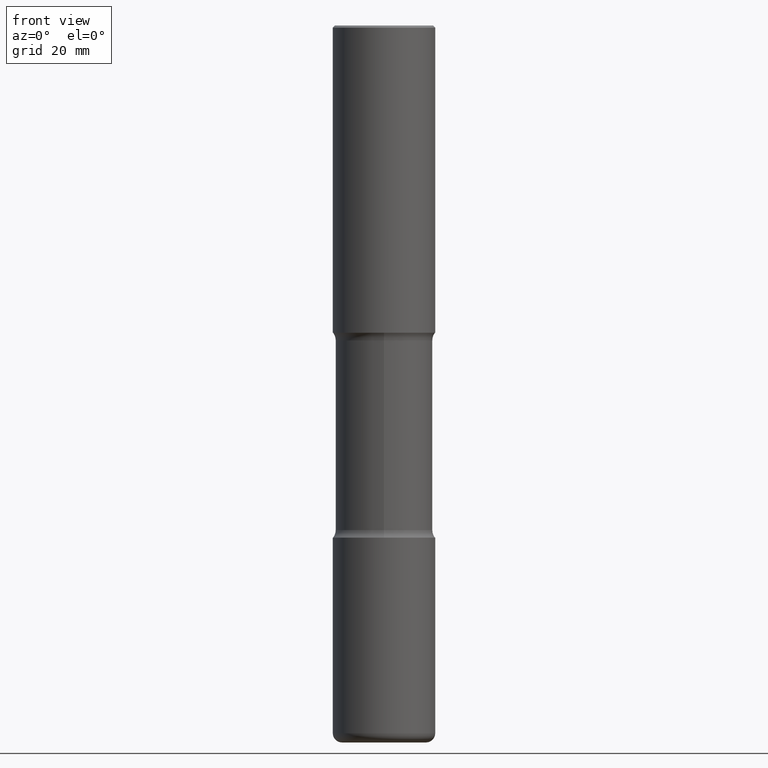
[diagram: clean part render]
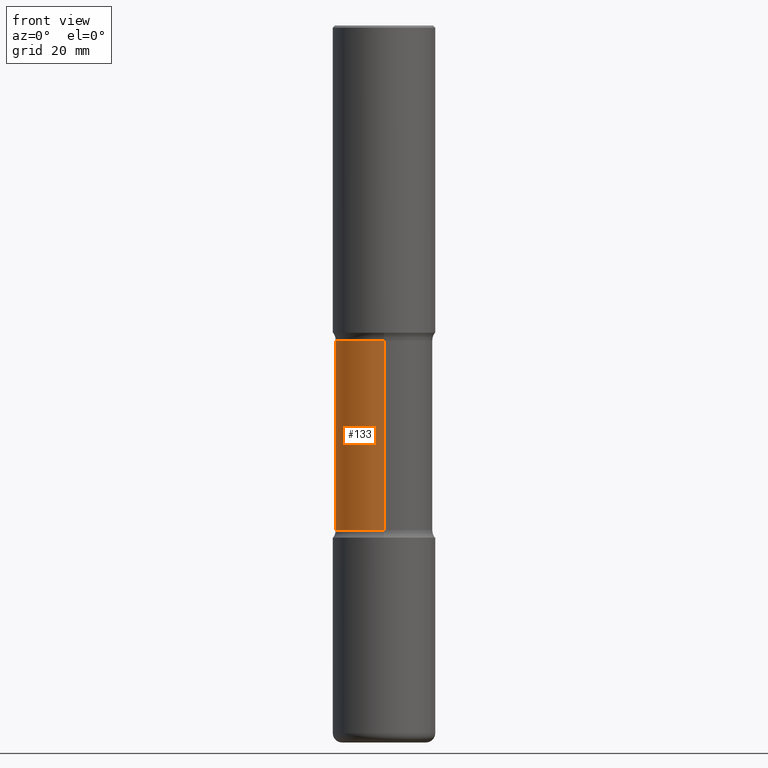
[diagram: same view with one face highlighted and labeled with its STEP entity id]
A machine part, front view. The second image highlights one B-rep face of the part: STEP entity #133.
In plain terms, the highlighted cylindrical surface (partial cylindrical patch) has radius 12.065 mm, axis along (0, -0, -1).
Its self-contained STEP definition (entity closure, byte-faithful):
#16 = CARTESIAN_POINT ( 'NONE',  ( 1.204017111178237438E-28, -1.720093407839433761E-14, -4.924999999999998046 ) ) ;
#30 = VERTEX_POINT ( 'NONE', #95 ) ;
#33 = FACE_OUTER_BOUND ( 'NONE', #55, .T. ) ;
#55 = EDGE_LOOP ( 'NONE', ( #368, #294, #148, #502 ) ) ;
#67 = DIRECTION ( 'NONE',  ( 2.495638921910708014E-29, -3.419634877618474112E-15, -1.000000000000000000 ) ) ;
#68 = AXIS2_PLACEMENT_3D ( 'NONE', #284, #332, #80 ) ;
#71 = CYLINDRICAL_SURFACE ( 'NONE', #82, 0.4750000000000000333 ) ;
#80 = DIRECTION ( 'NONE',  ( 6.982962677686265133E-15, 1.000000000000000000, -3.450755360418015555E-15 ) ) ;
#82 = AXIS2_PLACEMENT_3D ( 'NONE', #345, #423, #205 ) ;
#87 = LINE ( 'NONE', #437, #417 ) ;
#95 = CARTESIAN_POINT ( 'NONE',  ( -3.344492773913550718E-15, -0.4750000000000109690, -3.074999999999998401 ) ) ;
#133 = ADVANCED_FACE ( 'NONE', ( #33 ), #71, .T. ) ;
#148 = ORIENTED_EDGE ( 'NONE', *, *, #335, .T. ) ;
#152 = CARTESIAN_POINT ( 'NONE',  ( -3.258736548941304889E-15, -0.4750000000000243472, -6.999999999999997335 ) ) ;
#153 = VERTEX_POINT ( 'NONE', #558 ) ;
#173 = DIRECTION ( 'NONE',  ( 6.982962677686265133E-15, 1.000000000000000000, -2.300503573612011422E-15 ) ) ;
#205 = DIRECTION ( 'NONE',  ( 6.982962677686265922E-15, 1.000000000000000000, -2.300503573612011028E-15 ) ) ;
#209 = VECTOR ( 'NONE', #67, 39.37007874015748143 ) ;
#248 = CIRCLE ( 'NONE', #267, 0.4749999999999999778 ) ;
#267 = AXIS2_PLACEMENT_3D ( 'NONE', #16, #532, #173 ) ;
#284 = CARTESIAN_POINT ( 'NONE',  ( 7.423239106247569958E-29, -1.087460955480016368E-14, -3.074999999999999734 ) ) ;
#290 = CARTESIAN_POINT ( 'NONE',  ( 3.316907271901096594E-15, 0.4749999999999827693, -4.924999999999999822 ) ) ;
#294 = ORIENTED_EDGE ( 'NONE', *, *, #492, .T. ) ;
#310 = EDGE_CURVE ( 'NONE', #153, #401, #248, .T. ) ;
#329 = LINE ( 'NONE', #152, #209 ) ;
#332 = DIRECTION ( 'NONE',  ( 2.495638921910708014E-29, -3.419634877618474112E-15, -1.000000000000000000 ) ) ;
#335 = EDGE_CURVE ( 'NONE', #360, #401, #87, .T. ) ;
#345 = CARTESIAN_POINT ( 'NONE',  ( 1.721862187474709565E-28, -2.429667644945267101E-14, -6.999999999999998224 ) ) ;
#360 = VERTEX_POINT ( 'NONE', #457 ) ;
#361 = EDGE_CURVE ( 'NONE', #30, #153, #329, .T. ) ;
#368 = ORIENTED_EDGE ( 'NONE', *, *, #361, .F. ) ;
#401 = VERTEX_POINT ( 'NONE', #290 ) ;
#417 = VECTOR ( 'NONE', #514, 39.37007874015748143 ) ;
#423 = DIRECTION ( 'NONE',  ( 2.495638921910708014E-29, -3.419634877618474112E-15, -1.000000000000000000 ) ) ;
#437 = CARTESIAN_POINT ( 'NONE',  ( 3.316907271901148659E-15, 0.4749999999999757194, -7.000000000000000000 ) ) ;
#440 = CIRCLE ( 'NONE', #68, 0.4750000000000001443 ) ;
#457 = CARTESIAN_POINT ( 'NONE',  ( 3.316907271901051235E-15, 0.4749999999999892641, -3.075000000000001510 ) ) ;
#492 = EDGE_CURVE ( 'NONE', #30, #360, #440, .T. ) ;
#502 = ORIENTED_EDGE ( 'NONE', *, *, #310, .F. ) ;
#514 = DIRECTION ( 'NONE',  ( 2.495638921910708014E-29, -3.419634877618474112E-15, -1.000000000000000000 ) ) ;
#532 = DIRECTION ( 'NONE',  ( 2.495638921910708014E-29, -3.419634877618474112E-15, -1.000000000000000000 ) ) ;
#558 = CARTESIAN_POINT ( 'NONE',  ( -3.344492773913500625E-15, -0.4750000000000171863, -4.924999999999997158 ) ) ;